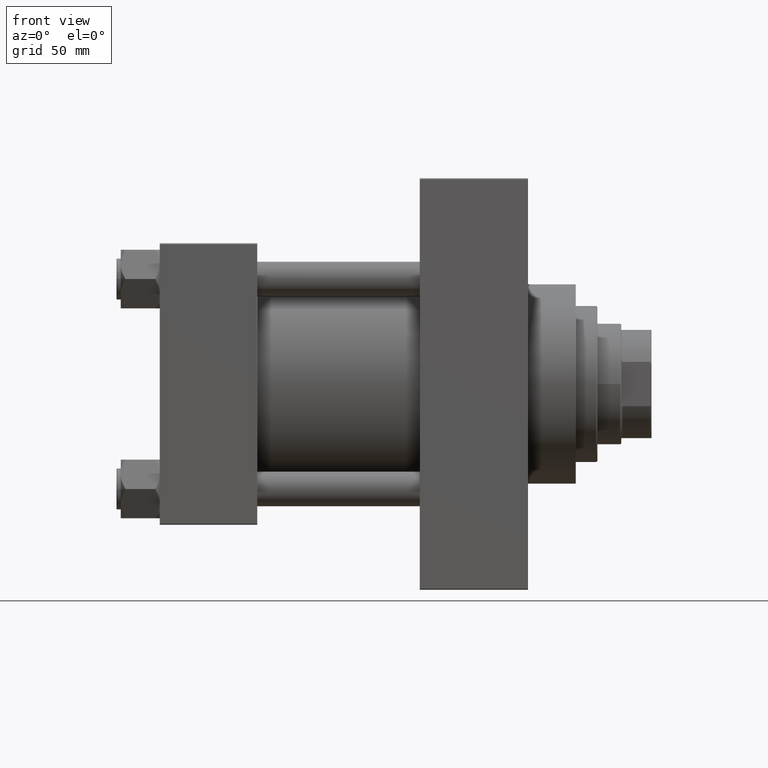
[diagram: clean part render]
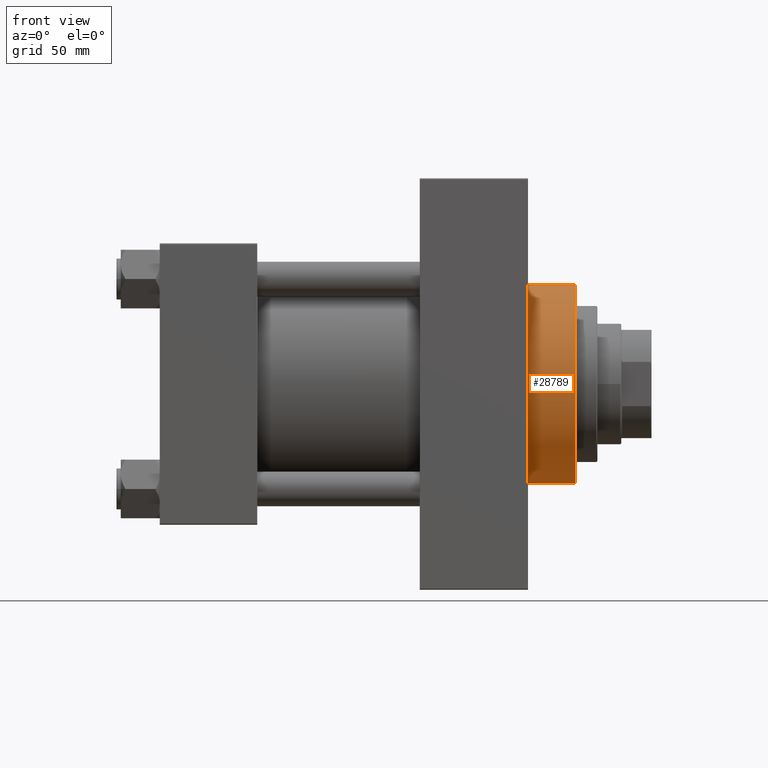
[diagram: same view with one face highlighted and labeled with its STEP entity id]
A machine part, front view. The second image highlights one B-rep face of the part: STEP entity #28789.
In plain terms, the highlighted cylindrical surface (partial cylindrical patch) has radius 46 mm, axis along (-1, -0, -0).
Its self-contained STEP definition (entity closure, byte-faithful):
#28 = FACE_OUTER_BOUND ( 'NONE', #44004, .T. ) ;
#2152 = AXIS2_PLACEMENT_3D ( 'NONE', #5254, #31075, #4532 ) ;
#2233 = CARTESIAN_POINT ( 'NONE',  ( 169.9999999999999716, 0.000000000000000000, 0.000000000000000000 ) ) ;
#3012 = ORIENTED_EDGE ( 'NONE', *, *, #7180, .F. ) ;
#4532 = DIRECTION ( 'NONE',  ( 0.000000000000000000, 0.000000000000000000, -1.000000000000000000 ) ) ;
#5048 = VERTEX_POINT ( 'NONE', #9763 ) ;
#5254 = CARTESIAN_POINT ( 'NONE',  ( 191.9999999999999716, 0.000000000000000000, 0.000000000000000000 ) ) ;
#5998 = CIRCLE ( 'NONE', #2152, 46.00000000000000000 ) ;
#7180 = EDGE_CURVE ( 'NONE', #45118, #15330, #28170, .T. ) ;
#7996 = CARTESIAN_POINT ( 'NONE',  ( 169.9999999999999716, 5.633375276077824704E-15, -46.00000000000000000 ) ) ;
#8361 = LINE ( 'NONE', #11735, #14495 ) ;
#9763 = CARTESIAN_POINT ( 'NONE',  ( 191.9999999999999716, 0.000000000000000000, 46.00000000000000000 ) ) ;
#11509 = DIRECTION ( 'NONE',  ( -1.000000000000000000, -0.000000000000000000, -0.000000000000000000 ) ) ;
#11635 = DIRECTION ( 'NONE',  ( -1.000000000000000000, -0.000000000000000000, -0.000000000000000000 ) ) ;
#11670 = VERTEX_POINT ( 'NONE', #25306 ) ;
#11735 = CARTESIAN_POINT ( 'NONE',  ( 191.9999999999999716, 0.000000000000000000, 46.00000000000000000 ) ) ;
#12743 = CIRCLE ( 'NONE', #21983, 46.00000000000000000 ) ;
#14286 = VECTOR ( 'NONE', #36119, 1000.000000000000000 ) ;
#14495 = VECTOR ( 'NONE', #11509, 1000.000000000000000 ) ;
#14672 = EDGE_CURVE ( 'NONE', #5048, #45118, #5998, .T. ) ;
#14790 = AXIS2_PLACEMENT_3D ( 'NONE', #25658, #11635, #18185 ) ;
#15148 = ORIENTED_EDGE ( 'NONE', *, *, #17971, .T. ) ;
#15330 = VERTEX_POINT ( 'NONE', #7996 ) ;
#17971 = EDGE_CURVE ( 'NONE', #5048, #11670, #8361, .T. ) ;
#18185 = DIRECTION ( 'NONE',  ( 0.000000000000000000, 0.000000000000000000, 1.000000000000000000 ) ) ;
#18544 = CARTESIAN_POINT ( 'NONE',  ( 191.9999999999999716, 5.633375276077824704E-15, -46.00000000000000000 ) ) ;
#18987 = ORIENTED_EDGE ( 'NONE', *, *, #14672, .F. ) ;
#19636 = DIRECTION ( 'NONE',  ( 0.000000000000000000, 0.000000000000000000, -1.000000000000000000 ) ) ;
#21401 = CARTESIAN_POINT ( 'NONE',  ( 191.9999999999999716, 5.633375276077824704E-15, -46.00000000000000000 ) ) ;
#21983 = AXIS2_PLACEMENT_3D ( 'NONE', #2233, #35072, #19636 ) ;
#25306 = CARTESIAN_POINT ( 'NONE',  ( 169.9999999999999716, 0.000000000000000000, 46.00000000000000000 ) ) ;
#25658 = CARTESIAN_POINT ( 'NONE',  ( 191.9999999999999716, 0.000000000000000000, 0.000000000000000000 ) ) ;
#26357 = CYLINDRICAL_SURFACE ( 'NONE', #14790, 46.00000000000000000 ) ;
#28170 = LINE ( 'NONE', #21401, #14286 ) ;
#28725 = ORIENTED_EDGE ( 'NONE', *, *, #44692, .T. ) ;
#28789 = ADVANCED_FACE ( 'NONE', ( #28 ), #26357, .T. ) ;
#31075 = DIRECTION ( 'NONE',  ( 1.000000000000000000, 0.000000000000000000, 0.000000000000000000 ) ) ;
#35072 = DIRECTION ( 'NONE',  ( 1.000000000000000000, 0.000000000000000000, 0.000000000000000000 ) ) ;
#36119 = DIRECTION ( 'NONE',  ( -1.000000000000000000, -0.000000000000000000, -0.000000000000000000 ) ) ;
#44004 = EDGE_LOOP ( 'NONE', ( #3012, #18987, #15148, #28725 ) ) ;
#44692 = EDGE_CURVE ( 'NONE', #11670, #15330, #12743, .T. ) ;
#45118 = VERTEX_POINT ( 'NONE', #18544 ) ;